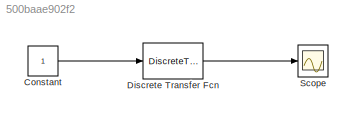
MODEL slx_500baae902f2
KIND model
BLOCK [Constant] Constant
BLOCK [DiscreteTransferFcn] Discrete Transfer Fcn
  Denominator = [1 -0.9048]
  InputPortMap = u0
  Numerator = [0.0476]
  Ports = [1, 1]
  SampleTime = 1
BLOCK [Scope] Scope
  DataFormat = StructureWithTime
  Floating = off
  NumInputPorts = 1
  Ports = [1]
  SampleTime = 0
  ShowLegends = off
LINE Constant:1 -> Discrete Transfer Fcn:1
LINE Discrete Transfer Fcn:1 -> Scope:1
